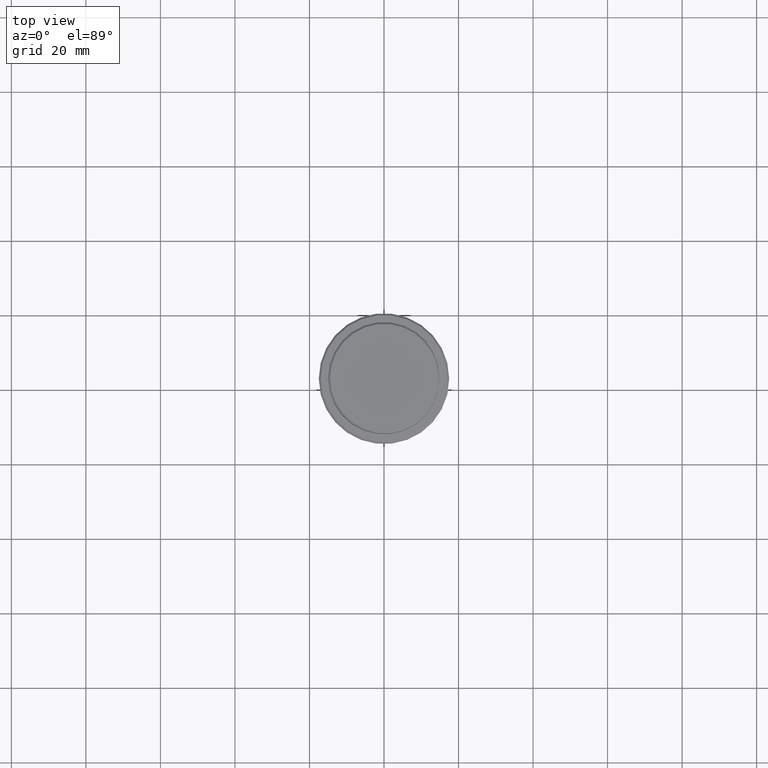
[diagram: clean part render]
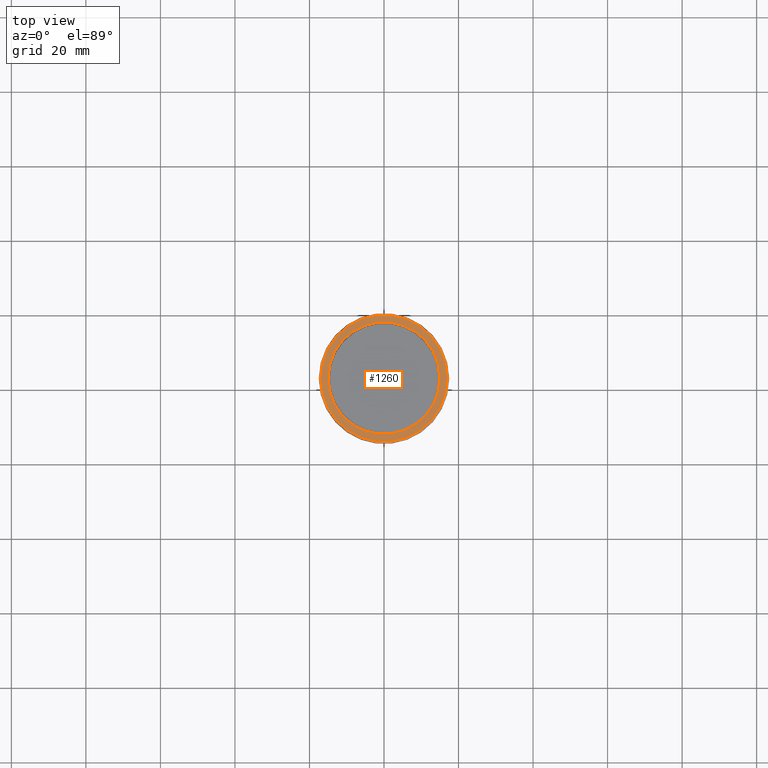
[diagram: same view with one face highlighted and labeled with its STEP entity id]
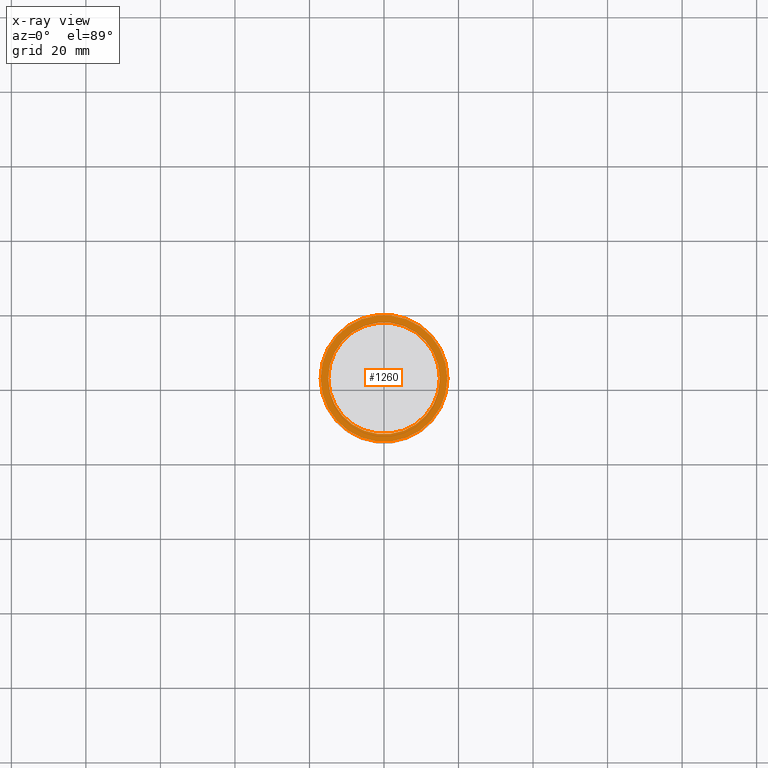
[diagram: x-ray of the same camera — body ghosted, the highlighted face saturated]
A machine part, top view. The second image highlights one B-rep face of the part: STEP entity #1260.
The next image is the same camera in x-ray: the body ghosted, the highlighted face saturated — about 0% of this face is hidden behind the body in this view.
In plain terms, the highlighted planar face has unit normal (0, -0, 1).
Its self-contained STEP definition (entity closure, byte-faithful):
#161 = DIRECTION ( 'NONE',  ( 0.000000000000000000, -0.000000000000000000, 1.000000000000000000 ) ) ;
#173 = EDGE_CURVE ( 'NONE', #573, #186, #1031, .T. ) ;
#180 = CIRCLE ( 'NONE', #1287, 14.99999999999999467 ) ;
#185 = DIRECTION ( 'NONE',  ( -0.000000000000000000, -0.000000000000000000, 1.000000000000000000 ) ) ;
#186 = VERTEX_POINT ( 'NONE', #1044 ) ;
#211 = ORIENTED_EDGE ( 'NONE', *, *, #1378, .T. ) ;
#270 = CARTESIAN_POINT ( 'NONE',  ( 0.000000000000000000, 0.000000000000000000, -9.000000000000001776 ) ) ;
#296 = AXIS2_PLACEMENT_3D ( 'NONE', #1153, #185, #629 ) ;
#381 = CARTESIAN_POINT ( 'NONE',  ( 0.000000000000000000, 0.000000000000000000, -9.000000000000001776 ) ) ;
#456 = CARTESIAN_POINT ( 'NONE',  ( -14.99999999999999467, 1.836970198721029194E-15, -9.000000000000001776 ) ) ;
#483 = AXIS2_PLACEMENT_3D ( 'NONE', #381, #1138, #1241 ) ;
#485 = DIRECTION ( 'NONE',  ( 1.000000000000000000, 0.000000000000000000, 0.000000000000000000 ) ) ;
#536 = CARTESIAN_POINT ( 'NONE',  ( 0.000000000000000000, 0.000000000000000000, -9.000000000000001776 ) ) ;
#567 = EDGE_LOOP ( 'NONE', ( #965, #211 ) ) ;
#573 = VERTEX_POINT ( 'NONE', #824 ) ;
#608 = FACE_BOUND ( 'NONE', #567, .T. ) ;
#629 = DIRECTION ( 'NONE',  ( 1.000000000000000000, 0.000000000000000000, 0.000000000000000000 ) ) ;
#669 = DIRECTION ( 'NONE',  ( -0.000000000000000000, -0.000000000000000000, 1.000000000000000000 ) ) ;
#695 = EDGE_CURVE ( 'NONE', #186, #573, #1331, .T. ) ;
#739 = VERTEX_POINT ( 'NONE', #456 ) ;
#775 = AXIS2_PLACEMENT_3D ( 'NONE', #536, #669, #1295 ) ;
#807 = DIRECTION ( 'NONE',  ( 1.000000000000000000, 0.000000000000000000, 0.000000000000000000 ) ) ;
#824 = CARTESIAN_POINT ( 'NONE',  ( 17.00000000000001421, 2.112515728529185250E-15, -9.000000000000001776 ) ) ;
#826 = EDGE_CURVE ( 'NONE', #1388, #739, #180, .T. ) ;
#912 = FACE_OUTER_BOUND ( 'NONE', #1195, .T. ) ;
#941 = ORIENTED_EDGE ( 'NONE', *, *, #695, .T. ) ;
#965 = ORIENTED_EDGE ( 'NONE', *, *, #826, .T. ) ;
#1031 = CIRCLE ( 'NONE', #296, 17.00000000000001421 ) ;
#1044 = CARTESIAN_POINT ( 'NONE',  ( -17.00000000000001421, 0.000000000000000000, -9.000000000000001776 ) ) ;
#1065 = CARTESIAN_POINT ( 'NONE',  ( 14.99999999999999467, 0.000000000000000000, -9.000000000000001776 ) ) ;
#1101 = AXIS2_PLACEMENT_3D ( 'NONE', #1249, #161, #807 ) ;
#1119 = PLANE ( 'NONE',  #1101 ) ;
#1138 = DIRECTION ( 'NONE',  ( 0.000000000000000000, 0.000000000000000000, -1.000000000000000000 ) ) ;
#1153 = CARTESIAN_POINT ( 'NONE',  ( 0.000000000000000000, 0.000000000000000000, -9.000000000000001776 ) ) ;
#1188 = ORIENTED_EDGE ( 'NONE', *, *, #173, .T. ) ;
#1195 = EDGE_LOOP ( 'NONE', ( #941, #1188 ) ) ;
#1213 = DIRECTION ( 'NONE',  ( 0.000000000000000000, 0.000000000000000000, -1.000000000000000000 ) ) ;
#1241 = DIRECTION ( 'NONE',  ( 1.000000000000000000, 0.000000000000000000, 0.000000000000000000 ) ) ;
#1249 = CARTESIAN_POINT ( 'NONE',  ( 0.000000000000000000, 14.49999999999999467, -9.000000000000001776 ) ) ;
#1260 = ADVANCED_FACE ( 'NONE', ( #912, #608 ), #1119, .T. ) ;
#1287 = AXIS2_PLACEMENT_3D ( 'NONE', #270, #1213, #485 ) ;
#1295 = DIRECTION ( 'NONE',  ( 1.000000000000000000, 0.000000000000000000, 0.000000000000000000 ) ) ;
#1331 = CIRCLE ( 'NONE', #775, 17.00000000000001421 ) ;
#1333 = CIRCLE ( 'NONE', #483, 14.99999999999999467 ) ;
#1378 = EDGE_CURVE ( 'NONE', #739, #1388, #1333, .T. ) ;
#1388 = VERTEX_POINT ( 'NONE', #1065 ) ;